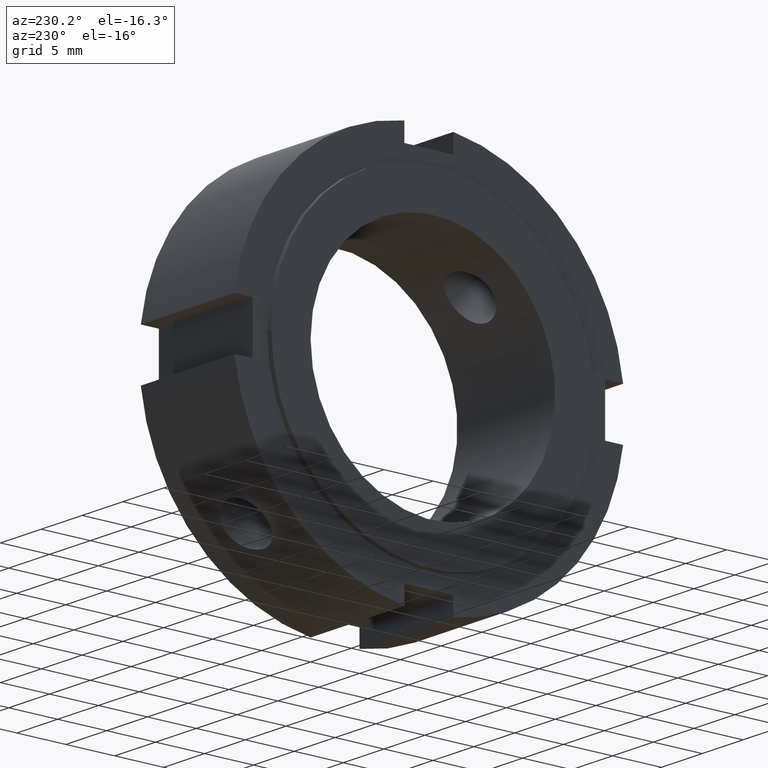
[diagram: clean part render]
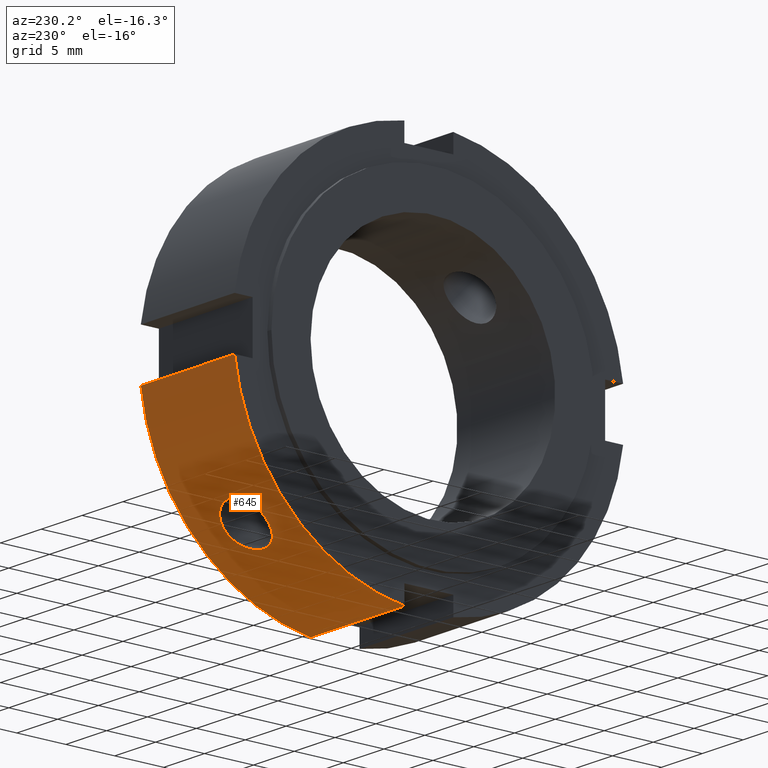
[diagram: same view with one face highlighted and labeled with its STEP entity id]
A machine part, auxiliary view. The second image highlights one B-rep face of the part: STEP entity #645.
In plain terms, the highlighted cylindrical surface (partial cylindrical patch) has radius 20 mm, axis along (1, 0, 0).
Its self-contained STEP definition (entity closure, byte-faithful):
#161=CARTESIAN_POINT('',(5.999999999999996,12.296459127753703,-15.773303170847964));
#162=VERTEX_POINT('',#161);
#163=CARTESIAN_POINT('',(5.999999999999996,12.296459127753703,-15.773303170847964));
#164=CARTESIAN_POINT('',(6.309031728745287,12.296459127753703,-15.773303170847964));
#165=CARTESIAN_POINT('',(6.638446184143287,12.345805275889166,-15.735216795334894));
#166=CARTESIAN_POINT('',(7.244075995513192,12.543571705065297,-15.578021834674832));
#167=CARTESIAN_POINT('',(7.520318291020638,12.691681694740211,-15.458626948454945));
#168=CARTESIAN_POINT('',(7.956524048848390,13.027037897636138,-15.177095052645628));
#169=CARTESIAN_POINT('',(8.145679894707632,13.236681295095753,-14.996071801450379));
#170=CARTESIAN_POINT('',(8.396676480061617,13.685104964261861,-14.588002032378915));
#171=CARTESIAN_POINT('',(8.458499999999996,13.923618899197056,-14.360652348264825));
#172=CARTESIAN_POINT('',(8.458499999999997,14.360652348264825,-13.923618899197066));
#173=CARTESIAN_POINT('',(8.396676480061618,14.588002032378906,-13.685104964261871));
#174=CARTESIAN_POINT('',(8.145679894707634,14.996071801450373,-13.236681295095762));
#175=CARTESIAN_POINT('',(7.956524048848391,15.177095052645624,-13.027037897636149));
#176=CARTESIAN_POINT('',(7.520318291020637,15.458626948454942,-12.691681694740220));
#177=CARTESIAN_POINT('',(7.244075995513191,15.578021834674827,-12.543571705065304));
#178=CARTESIAN_POINT('',(6.638446184143286,15.735216795334889,-12.345805275889173));
#179=CARTESIAN_POINT('',(6.309031728745287,15.773303170847958,-12.296459127753705));
#180=CARTESIAN_POINT('',(5.690968271254705,15.773303170847957,-12.296459127753705));
#181=CARTESIAN_POINT('',(5.361553815856706,15.735216795334892,-12.345805275889173));
#182=CARTESIAN_POINT('',(4.755924004486800,15.578021834674827,-12.543571705065306));
#183=CARTESIAN_POINT('',(4.479681708979356,15.458626948454938,-12.691681694740220));
#184=CARTESIAN_POINT('',(4.043475951151602,15.177095052645623,-13.027037897636149));
#185=CARTESIAN_POINT('',(3.854320105292360,14.996071801450370,-13.236681295095764));
#186=CARTESIAN_POINT('',(3.603323519938376,14.588002032378908,-13.685104964261869));
#187=CARTESIAN_POINT('',(3.541499999999997,14.360652348264821,-13.923618899197063));
#188=CARTESIAN_POINT('',(3.541499999999997,13.923618899197059,-14.360652348264827));
#189=CARTESIAN_POINT('',(3.603323519938375,13.685104964261862,-14.588002032378913));
#190=CARTESIAN_POINT('',(3.854320105292362,13.236681295095753,-14.996071801450379));
#191=CARTESIAN_POINT('',(4.043475951151602,13.027037897636138,-15.177095052645630));
#192=CARTESIAN_POINT('',(4.479681708979355,12.691681694740211,-15.458626948454945));
#193=CARTESIAN_POINT('',(4.755924004486801,12.543571705065297,-15.578021834674832));
#194=CARTESIAN_POINT('',(5.361553815856706,12.345805275889166,-15.735216795334894));
#195=CARTESIAN_POINT('',(5.690968271254705,12.296459127753703,-15.773303170847964));
#196=CARTESIAN_POINT('',(5.999999999999996,12.296459127753703,-15.773303170847964));
#197=B_SPLINE_CURVE_WITH_KNOTS('',3,(#163,#164,#165,#166,#167,#168,#169,#170,#171,#172,#173,#174,#175,#176,#177,#178,#179,#180,#181,#182,#183,#184,#185,#186,#187,#188,#189,#190,#191,#192,#193,#194,#195,#196),.UNSPECIFIED.,.T.,.U.,(4,2,2,2,2,2,2,2,2,2,2,2,2,2,2,2,4),(0.0,0.092709518623587,0.185419037247174,0.278127831879523,0.370836626511871,0.463545421144219,0.556254215776567,0.648963734400154,0.741673253023741,0.834382771647329,0.927092290270916,1.019801084903264,1.112509879535612,1.205218674167961,1.297927468800309,1.390636987423896,1.483346506047483),.UNSPECIFIED.);
#198=EDGE_CURVE('',#162,#162,#197,.T.);
#289=CARTESIAN_POINT('',(0.499999999999998,2.499999999999995,-19.843134832984425));
#290=VERTEX_POINT('',#289);
#299=CARTESIAN_POINT('',(11.999999999999996,2.499999999999995,-19.843134832984425));
#300=VERTEX_POINT('',#299);
#301=CARTESIAN_POINT('',(11.999999999999998,2.499999999999996,-19.843134832984429));
#302=DIRECTION('',(-1.0,0.0,0.0));
#303=VECTOR('',#302,11.500000000000000);
#304=LINE('',#301,#303);
#305=EDGE_CURVE('',#300,#290,#304,.T.);
#610=CARTESIAN_POINT('',(6.249999999999998,0.0,0.0));
#611=DIRECTION('',(1.0,0.0,0.0));
#612=DIRECTION('',(0.0,1.0,0.0));
#613=AXIS2_PLACEMENT_3D('',#610,#611,#612);
#614=CYLINDRICAL_SURFACE('',#613,19.999999999999996);
#615=ORIENTED_EDGE('',*,*,#305,.T.);
#616=CARTESIAN_POINT('',(0.499999999999998,19.843134832984425,-2.499999999999999));
#617=VERTEX_POINT('',#616);
#618=CARTESIAN_POINT('',(0.499999999999998,0.0,0.0));
#619=DIRECTION('',(1.0,0.0,0.0));
#620=DIRECTION('',(0.0,1.0,0.0));
#621=AXIS2_PLACEMENT_3D('',#618,#619,#620);
#622=CIRCLE('',#621,19.999999999999996);
#623=EDGE_CURVE('',#290,#617,#622,.T.);
#624=ORIENTED_EDGE('',*,*,#623,.T.);
#625=CARTESIAN_POINT('',(11.999999999999996,19.843134832984425,-2.499999999999999));
#626=VERTEX_POINT('',#625);
#627=CARTESIAN_POINT('',(0.499999999999998,19.843134832984425,-2.499999999999999));
#628=DIRECTION('',(1.0,0.0,0.0));
#629=VECTOR('',#628,11.500000000000000);
#630=LINE('',#627,#629);
#631=EDGE_CURVE('',#617,#626,#630,.T.);
#632=ORIENTED_EDGE('',*,*,#631,.T.);
#633=CARTESIAN_POINT('',(11.999999999999996,0.0,0.0));
#634=DIRECTION('',(1.0,0.0,0.0));
#635=DIRECTION('',(0.0,1.0,0.0));
#636=AXIS2_PLACEMENT_3D('',#633,#634,#635);
#637=CIRCLE('',#636,19.999999999999996);
#638=EDGE_CURVE('',#300,#626,#637,.T.);
#639=ORIENTED_EDGE('',*,*,#638,.F.);
#640=EDGE_LOOP('',(#615,#624,#632,#639));
#641=FACE_OUTER_BOUND('',#640,.T.);
#642=ORIENTED_EDGE('',*,*,#198,.T.);
#643=EDGE_LOOP('',(#642));
#644=FACE_BOUND('',#643,.T.);
#645=ADVANCED_FACE('',(#641,#644),#614,.T.);